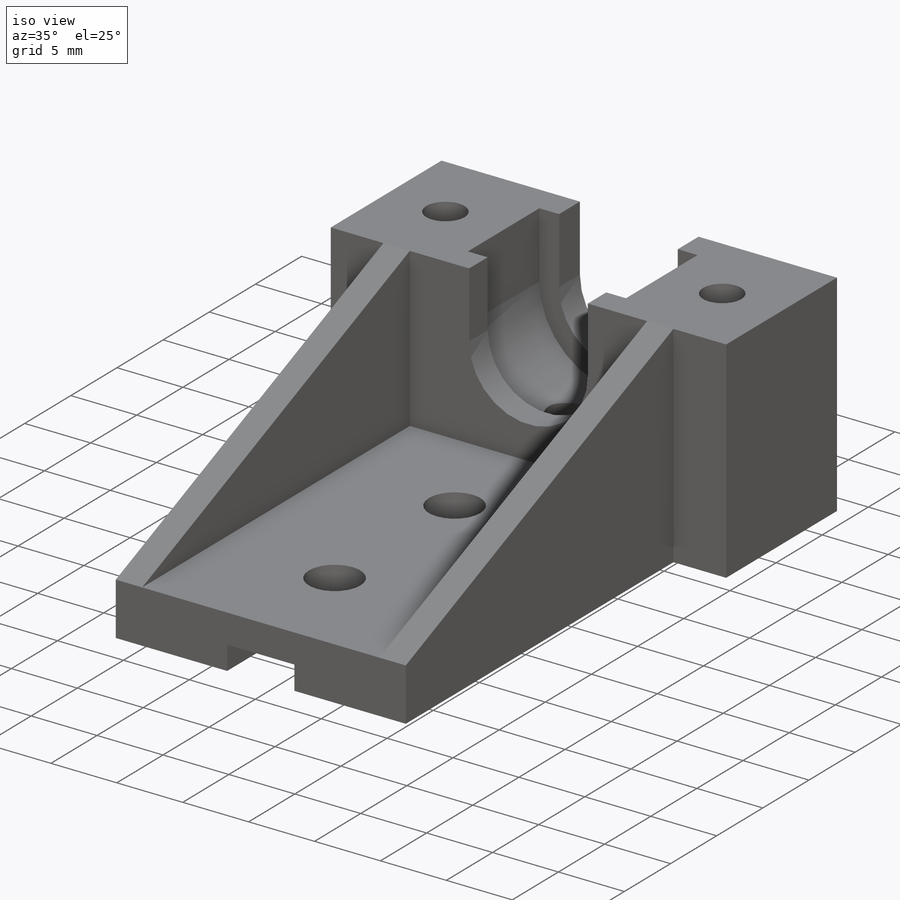
[diagram: iso view]
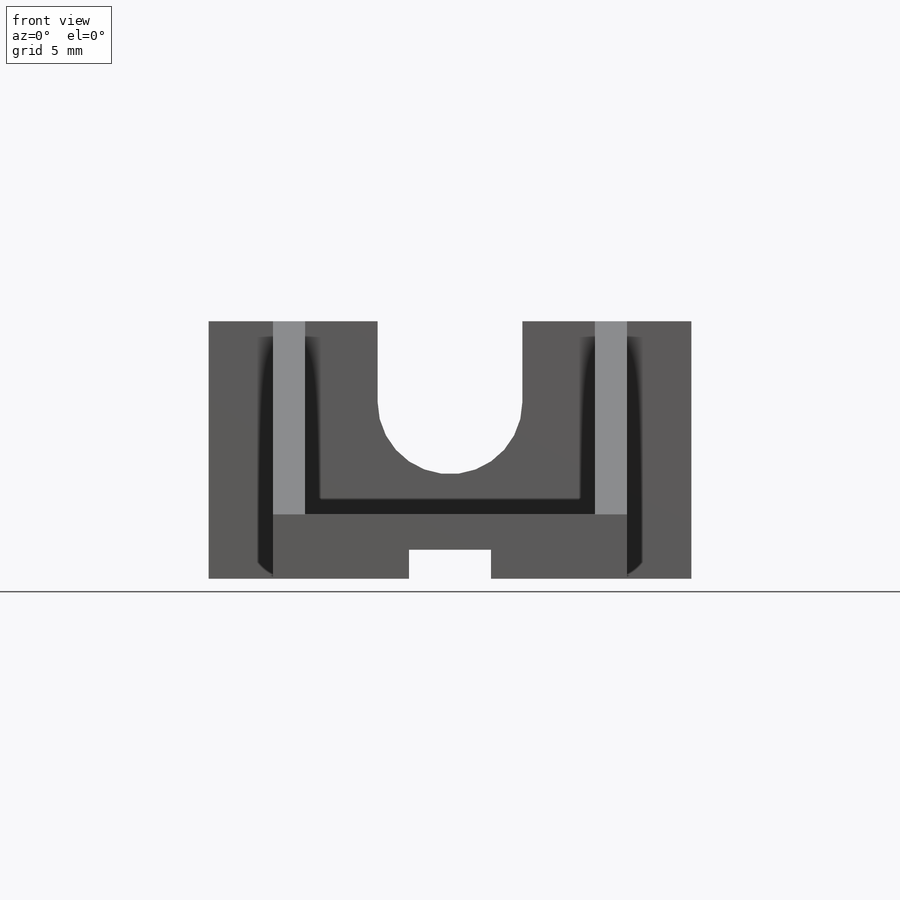
[diagram: front view]
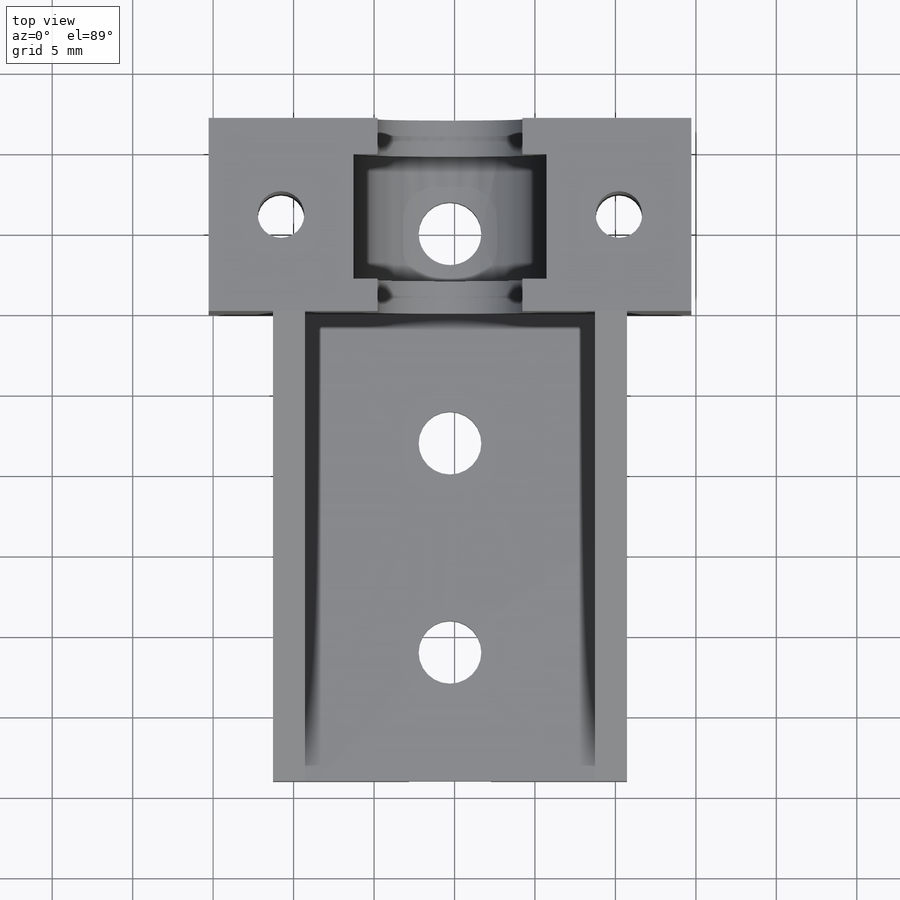
[diagram: top view]
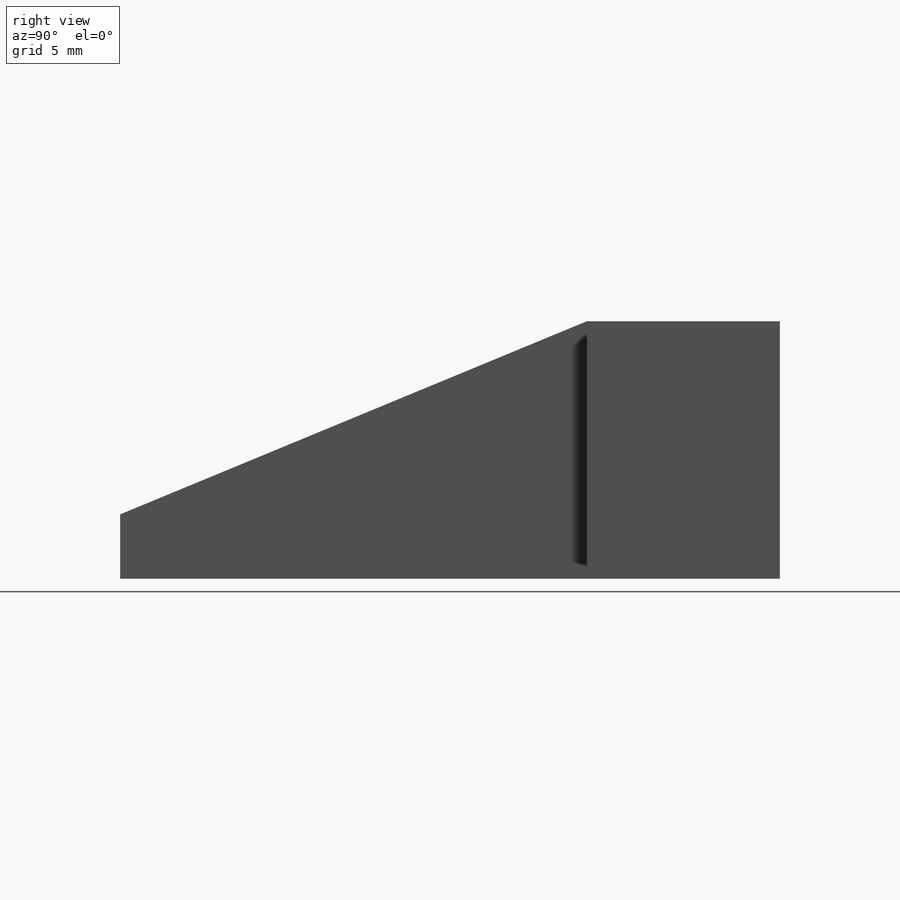
[diagram: right view]
SOLIDWORKS PART (.sldprt)
format: sldprt  version: not decoded by parser v0  size: 341,504 bytes
history: native  units: mm
features: sketch x10, cut_extrude x6, extrude x4, material x1 (+12 scaffold rows collapsed)
feature tree (33):
  scaffold x12  (default folders/planes/origin — collapsed)
  material  "Material <not specified>"
  sketch  "Sketch1"  dims[D3=4.5mm D1=5.1mm D2=1.8mm D4=16.0mm D5=30.0mm D6=3.5mm]
  extrude  "Boss-Extrude1"  Depth=12mm
  sketch  "Sketch2"  dims[D1=10.7mm]
  cut_extrude  "Cut-Extrude1"  Depth=9.75mm
  sketch  "Sketch7"  dims[D1=12.95mm]
  cut_extrude  "Cut-Extrude4"  Depth=2.8mm
  sketch  "Sketch8"  dims[D1=12.0mm]
  sketch  "Sketch3"  dims[D2=2.9mm D1=4.5mm]
  cut_extrude  "Cut-Extrude2"  Depth=18mm
  sketch  "Sketch4"  dims[D1=11.0mm D2=4.0mm]
  extrude  "Boss-Extrude2"  Depth=29mm
  sketch  "Sketch5"  dims[D1=3.9mm D5=5.2mm D2=13.0mm D3=8.0mm D4=13.0mm]
  cut_extrude  "Cut-Extrude3"  Depth=29mm
  sketch  "Sketch6"
  extrude  "Boss-Extrude3"  Depth=2mm
  extrude  "Boss-Extrude4"  [1 undecoded]
  sketch  "Sketch6<2>"  dims[D1=2.0mm D19=22.0mm]
  cut_extrude  "Cut-Extrude5"  Depth=5.2mm
  sketch  "Sketch9"
  cut_extrude  "Cut-Extrude6"  Depth=0.5mm
decode coverage: 17 of 20 modeling features carry decoded parameters
note: 1 parameter value undecoded
note: suppression state not decoded; provenance and decode notes live in map.json
